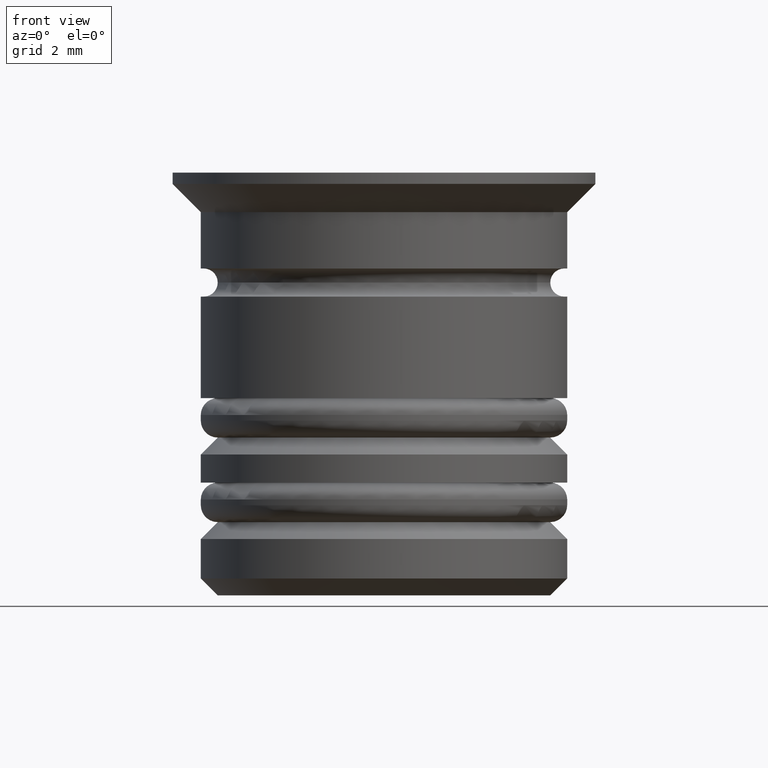
[diagram: clean part render]
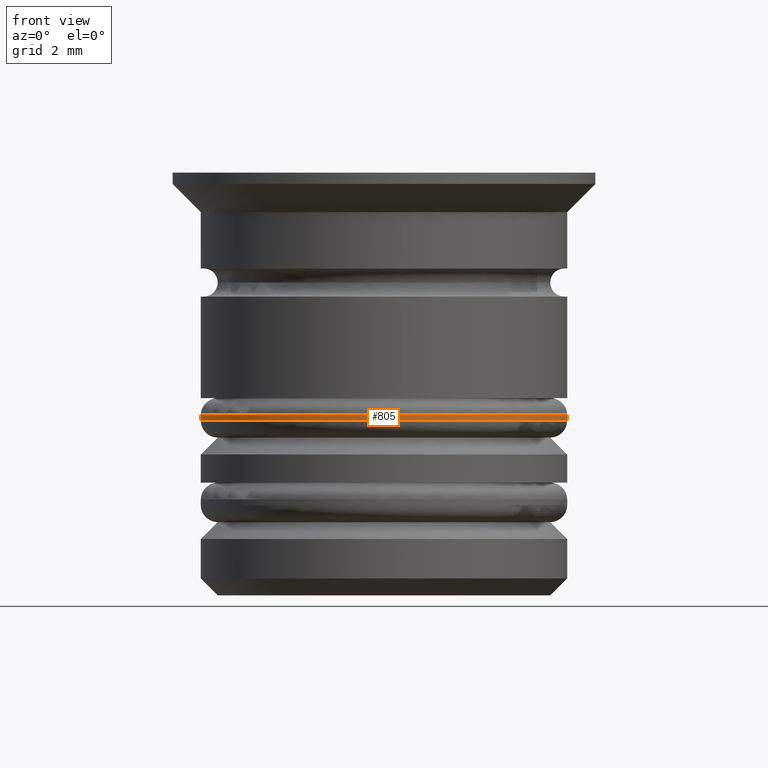
[diagram: same view with one face highlighted and labeled with its STEP entity id]
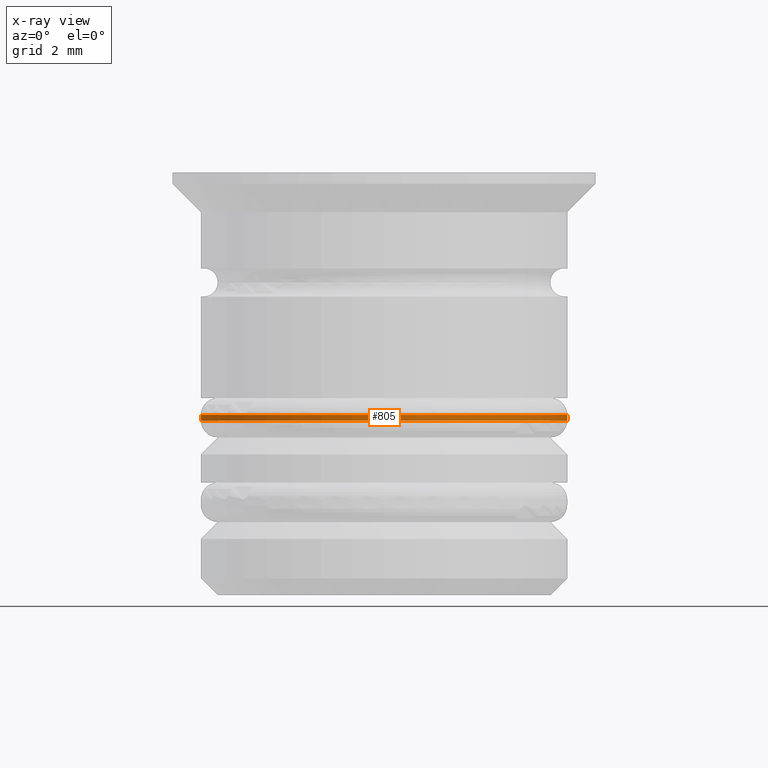
[diagram: x-ray of the same camera — body ghosted, the highlighted face saturated]
A machine part, front view. The second image highlights one B-rep face of the part: STEP entity #805.
The next image is the same camera in x-ray: the body ghosted, the highlighted face saturated — about 0% of this face is hidden behind the body in this view.
In plain terms, the highlighted cylindrical surface (partial cylindrical patch) has radius 3.25 mm, axis along (-0, -0, 1).
Its self-contained STEP definition (entity closure, byte-faithful):
#56 = DIRECTION ( 'NONE',  ( -0.000000000000000000, -0.000000000000000000, 1.000000000000000000 ) ) ;
#80 = VECTOR ( 'NONE', #1000, 1000.000000000000000 ) ;
#94 = CARTESIAN_POINT ( 'NONE',  ( 3.250000000000000444, 0.000000000000000000, -13.89238815542512206 ) ) ;
#95 = DIRECTION ( 'NONE',  ( 0.000000000000000000, 0.000000000000000000, -1.000000000000000000 ) ) ;
#125 = DIRECTION ( 'NONE',  ( 0.000000000000000000, 0.000000000000000000, 1.000000000000000000 ) ) ;
#149 = CARTESIAN_POINT ( 'NONE',  ( -3.250000000000000444, 3.980102097228898231E-16, -13.89238815542512206 ) ) ;
#175 = EDGE_CURVE ( 'NONE', #1326, #300, #327, .T. ) ;
#195 = AXIS2_PLACEMENT_3D ( 'NONE', #435, #841, #1392 ) ;
#230 = CIRCLE ( 'NONE', #1251, 3.250000000000000444 ) ;
#250 = CARTESIAN_POINT ( 'NONE',  ( -3.250000000000000444, 3.980102097228898231E-16, -4.299999999999999822 ) ) ;
#254 = VECTOR ( 'NONE', #56, 1000.000000000000000 ) ;
#295 = CARTESIAN_POINT ( 'NONE',  ( 3.250000000000000444, 0.000000000000000000, -4.400000000000004796 ) ) ;
#300 = VERTEX_POINT ( 'NONE', #900 ) ;
#327 = LINE ( 'NONE', #94, #254 ) ;
#435 = CARTESIAN_POINT ( 'NONE',  ( 0.000000000000000000, 0.000000000000000000, -13.89238815542512206 ) ) ;
#556 = ORIENTED_EDGE ( 'NONE', *, *, #175, .T. ) ;
#575 = FACE_OUTER_BOUND ( 'NONE', #1368, .T. ) ;
#642 = DIRECTION ( 'NONE',  ( -1.000000000000000000, 0.000000000000000000, 0.000000000000000000 ) ) ;
#786 = VERTEX_POINT ( 'NONE', #250 ) ;
#805 = ADVANCED_FACE ( 'NONE', ( #575 ), #974, .T. ) ;
#841 = DIRECTION ( 'NONE',  ( -0.000000000000000000, -0.000000000000000000, 1.000000000000000000 ) ) ;
#865 = DIRECTION ( 'NONE',  ( 1.000000000000000000, 0.000000000000000000, 0.000000000000000000 ) ) ;
#884 = CIRCLE ( 'NONE', #1195, 3.250000000000000444 ) ;
#900 = CARTESIAN_POINT ( 'NONE',  ( 3.250000000000000444, 0.000000000000000000, -4.299999999999999822 ) ) ;
#974 = CYLINDRICAL_SURFACE ( 'NONE', #195, 3.250000000000000444 ) ;
#1000 = DIRECTION ( 'NONE',  ( -0.000000000000000000, -0.000000000000000000, 1.000000000000000000 ) ) ;
#1029 = CARTESIAN_POINT ( 'NONE',  ( -3.250000000000000444, 3.980102097228898231E-16, -4.400000000000004796 ) ) ;
#1092 = ORIENTED_EDGE ( 'NONE', *, *, #1680, .F. ) ;
#1141 = LINE ( 'NONE', #149, #80 ) ;
#1181 = EDGE_CURVE ( 'NONE', #1792, #1326, #230, .T. ) ;
#1195 = AXIS2_PLACEMENT_3D ( 'NONE', #1786, #95, #642 ) ;
#1237 = CARTESIAN_POINT ( 'NONE',  ( 0.000000000000000000, 0.000000000000000000, -4.400000000000004796 ) ) ;
#1251 = AXIS2_PLACEMENT_3D ( 'NONE', #1237, #125, #865 ) ;
#1285 = EDGE_CURVE ( 'NONE', #300, #786, #884, .T. ) ;
#1326 = VERTEX_POINT ( 'NONE', #295 ) ;
#1368 = EDGE_LOOP ( 'NONE', ( #1092, #1718, #556, #1597 ) ) ;
#1392 = DIRECTION ( 'NONE',  ( 1.000000000000000000, 0.000000000000000000, 0.000000000000000000 ) ) ;
#1597 = ORIENTED_EDGE ( 'NONE', *, *, #1285, .T. ) ;
#1680 = EDGE_CURVE ( 'NONE', #1792, #786, #1141, .T. ) ;
#1718 = ORIENTED_EDGE ( 'NONE', *, *, #1181, .T. ) ;
#1786 = CARTESIAN_POINT ( 'NONE',  ( 0.000000000000000000, 0.000000000000000000, -4.299999999999999822 ) ) ;
#1792 = VERTEX_POINT ( 'NONE', #1029 ) ;